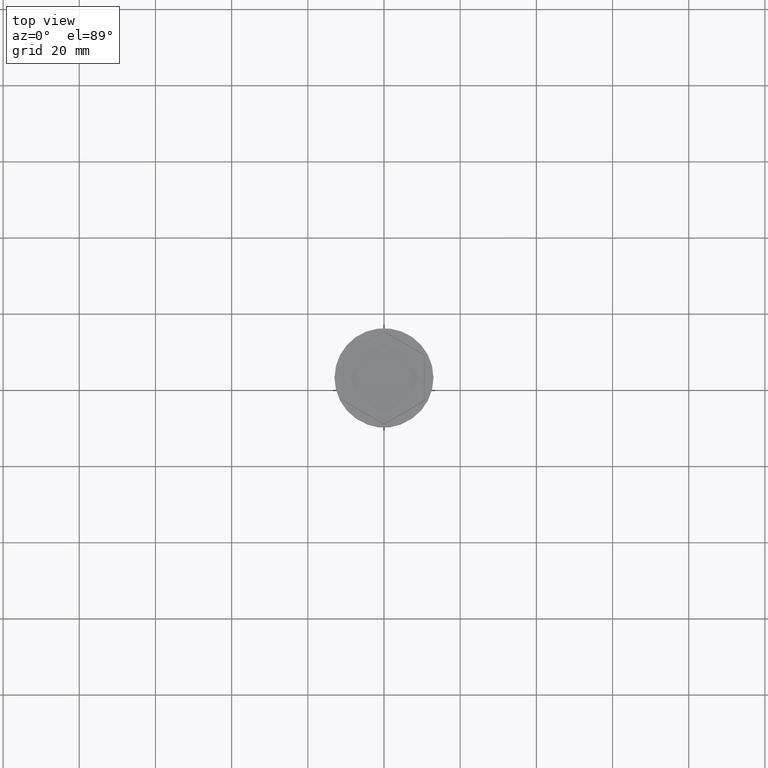
[diagram: clean part render]
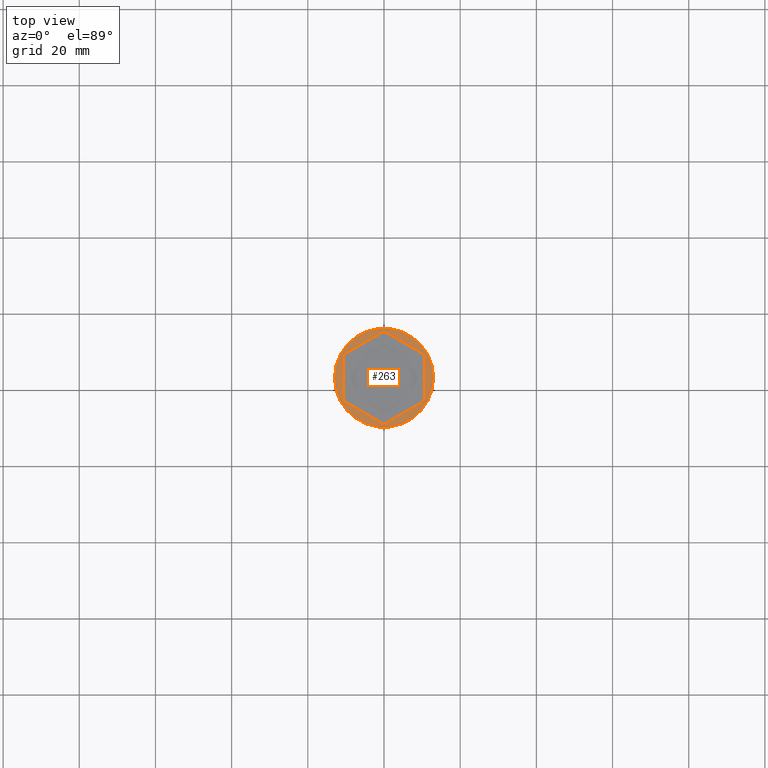
[diagram: same view with one face highlighted and labeled with its STEP entity id]
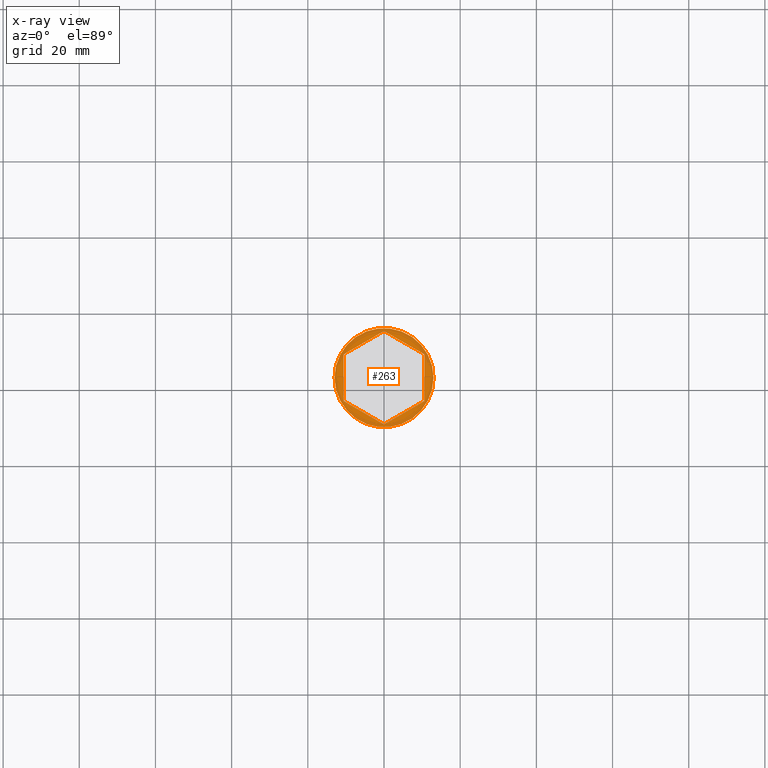
[diagram: x-ray of the same camera — body ghosted, the highlighted face saturated]
A machine part, top view. The second image highlights one B-rep face of the part: STEP entity #263.
The next image is the same camera in x-ray: the body ghosted, the highlighted face saturated — about 0% of this face is hidden behind the body in this view.
In plain terms, the highlighted planar face has unit normal (0, -0, 1).
Its self-contained STEP definition (entity closure, byte-faithful):
#16 = AXIS2_PLACEMENT_3D ( 'NONE', #600, #970, #1567 ) ;
#51 = ORIENTED_EDGE ( 'NONE', *, *, #1541, .T. ) ;
#55 = CARTESIAN_POINT ( 'NONE',  ( -10.59999999999998010, 6.062177826491066845, 0.000000000000000000 ) ) ;
#65 = DIRECTION ( 'NONE',  ( 0.8660254037844385966, 0.5000000000000001110, 0.000000000000000000 ) ) ;
#73 = LINE ( 'NONE', #1065, #793 ) ;
#74 = LINE ( 'NONE', #55, #872 ) ;
#169 = VERTEX_POINT ( 'NONE', #379 ) ;
#213 = CARTESIAN_POINT ( 'NONE',  ( 10.59999999999998010, -6.062177826491069510, 0.000000000000000000 ) ) ;
#214 = ORIENTED_EDGE ( 'NONE', *, *, #484, .T. ) ;
#254 = EDGE_CURVE ( 'NONE', #355, #169, #1493, .T. ) ;
#263 = ADVANCED_FACE ( 'NONE', ( #637, #1476 ), #497, .T. ) ;
#264 = VERTEX_POINT ( 'NONE', #383 ) ;
#275 = VECTOR ( 'NONE', #1578, 1000.000000000000114 ) ;
#299 = CARTESIAN_POINT ( 'NONE',  ( 10.59999999999998010, -6.119912853410021114, 0.000000000000000000 ) ) ;
#324 = DIRECTION ( 'NONE',  ( -0.8660254037844387076, 0.4999999999999998335, 0.000000000000000000 ) ) ;
#338 = CARTESIAN_POINT ( 'NONE',  ( -13.00000000000000178, 1.592040838891559293E-15, 0.000000000000000000 ) ) ;
#348 = ORIENTED_EDGE ( 'NONE', *, *, #640, .T. ) ;
#355 = VERTEX_POINT ( 'NONE', #743 ) ;
#369 = VERTEX_POINT ( 'NONE', #1515 ) ;
#370 = DIRECTION ( 'NONE',  ( 1.000000000000000000, 0.000000000000000000, 0.000000000000000000 ) ) ;
#379 = CARTESIAN_POINT ( 'NONE',  ( 10.59999999999998010, 6.119912853410025555, 0.000000000000000000 ) ) ;
#383 = CARTESIAN_POINT ( 'NONE',  ( -10.59999999999998010, 6.119912853410018450, 0.000000000000000000 ) ) ;
#411 = LINE ( 'NONE', #1135, #1142 ) ;
#447 = ORIENTED_EDGE ( 'NONE', *, *, #568, .T. ) ;
#484 = EDGE_CURVE ( 'NONE', #967, #369, #411, .T. ) ;
#497 = PLANE ( 'NONE',  #1425 ) ;
#520 = CARTESIAN_POINT ( 'NONE',  ( 10.54999999999999005, 6.148780366869502245, 0.000000000000000000 ) ) ;
#535 = CIRCLE ( 'NONE', #1075, 13.00000000000000178 ) ;
#547 = VERTEX_POINT ( 'NONE', #338 ) ;
#568 = EDGE_CURVE ( 'NONE', #369, #1486, #1550, .T. ) ;
#600 = CARTESIAN_POINT ( 'NONE',  ( 0.000000000000000000, 0.000000000000000000, 0.000000000000000000 ) ) ;
#637 = FACE_BOUND ( 'NONE', #1411, .T. ) ;
#640 = EDGE_CURVE ( 'NONE', #1486, #264, #74, .T. ) ;
#655 = EDGE_CURVE ( 'NONE', #547, #831, #535, .T. ) ;
#684 = ORIENTED_EDGE ( 'NONE', *, *, #1599, .T. ) ;
#706 = CARTESIAN_POINT ( 'NONE',  ( -10.54999999999999183, -6.148780366869503133, 0.000000000000000000 ) ) ;
#712 = DIRECTION ( 'NONE',  ( 0.000000000000000000, -1.000000000000000000, -0.000000000000000000 ) ) ;
#725 = CARTESIAN_POINT ( 'NONE',  ( 0.000000000000000000, 0.000000000000000000, 0.000000000000000000 ) ) ;
#743 = CARTESIAN_POINT ( 'NONE',  ( 2.407398643859234042E-15, 12.23982570682004400, 0.000000000000000000 ) ) ;
#793 = VECTOR ( 'NONE', #65, 1000.000000000000114 ) ;
#830 = LINE ( 'NONE', #213, #1533 ) ;
#831 = VERTEX_POINT ( 'NONE', #998 ) ;
#872 = VECTOR ( 'NONE', #1052, 1000.000000000000000 ) ;
#967 = VERTEX_POINT ( 'NONE', #299 ) ;
#970 = DIRECTION ( 'NONE',  ( -0.000000000000000000, -0.000000000000000000, 1.000000000000000000 ) ) ;
#998 = CARTESIAN_POINT ( 'NONE',  ( 13.00000000000000178, 0.000000000000000000, 0.000000000000000000 ) ) ;
#999 = DIRECTION ( 'NONE',  ( 0.000000000000000000, -0.000000000000000000, 1.000000000000000000 ) ) ;
#1052 = DIRECTION ( 'NONE',  ( 0.000000000000000000, 1.000000000000000000, 0.000000000000000000 ) ) ;
#1065 = CARTESIAN_POINT ( 'NONE',  ( -0.04999999999999183570, 12.21095819336056643, 0.000000000000000000 ) ) ;
#1067 = EDGE_CURVE ( 'NONE', #264, #355, #73, .T. ) ;
#1075 = AXIS2_PLACEMENT_3D ( 'NONE', #725, #1466, #370 ) ;
#1119 = ORIENTED_EDGE ( 'NONE', *, *, #655, .T. ) ;
#1135 = CARTESIAN_POINT ( 'NONE',  ( 0.04999999999999139161, -12.21095819336056998, 0.000000000000000000 ) ) ;
#1142 = VECTOR ( 'NONE', #1506, 999.9999999999998863 ) ;
#1182 = CARTESIAN_POINT ( 'NONE',  ( -10.59999999999998010, -6.119912853410028220, 0.000000000000000000 ) ) ;
#1358 = VECTOR ( 'NONE', #324, 1000.000000000000000 ) ;
#1366 = CARTESIAN_POINT ( 'NONE',  ( 0.000000000000000000, 0.000000000000000000, 0.000000000000000000 ) ) ;
#1411 = EDGE_LOOP ( 'NONE', ( #348, #1490, #1501, #684, #214, #447 ) ) ;
#1425 = AXIS2_PLACEMENT_3D ( 'NONE', #1366, #999, #1601 ) ;
#1462 = CIRCLE ( 'NONE', #16, 13.00000000000000178 ) ;
#1465 = EDGE_LOOP ( 'NONE', ( #51, #1119 ) ) ;
#1466 = DIRECTION ( 'NONE',  ( -0.000000000000000000, -0.000000000000000000, 1.000000000000000000 ) ) ;
#1476 = FACE_OUTER_BOUND ( 'NONE', #1465, .T. ) ;
#1486 = VERTEX_POINT ( 'NONE', #1182 ) ;
#1490 = ORIENTED_EDGE ( 'NONE', *, *, #1067, .T. ) ;
#1493 = LINE ( 'NONE', #520, #275 ) ;
#1501 = ORIENTED_EDGE ( 'NONE', *, *, #254, .T. ) ;
#1506 = DIRECTION ( 'NONE',  ( -0.8660254037844385966, -0.5000000000000002220, 0.000000000000000000 ) ) ;
#1515 = CARTESIAN_POINT ( 'NONE',  ( -9.565220071445602241E-16, -12.23982570682004578, 0.000000000000000000 ) ) ;
#1533 = VECTOR ( 'NONE', #712, 1000.000000000000000 ) ;
#1541 = EDGE_CURVE ( 'NONE', #831, #547, #1462, .T. ) ;
#1550 = LINE ( 'NONE', #706, #1358 ) ;
#1567 = DIRECTION ( 'NONE',  ( 1.000000000000000000, 0.000000000000000000, 0.000000000000000000 ) ) ;
#1578 = DIRECTION ( 'NONE',  ( 0.8660254037844388186, -0.4999999999999997780, 0.000000000000000000 ) ) ;
#1599 = EDGE_CURVE ( 'NONE', #169, #967, #830, .T. ) ;
#1601 = DIRECTION ( 'NONE',  ( 1.000000000000000000, 0.000000000000000000, 0.000000000000000000 ) ) ;